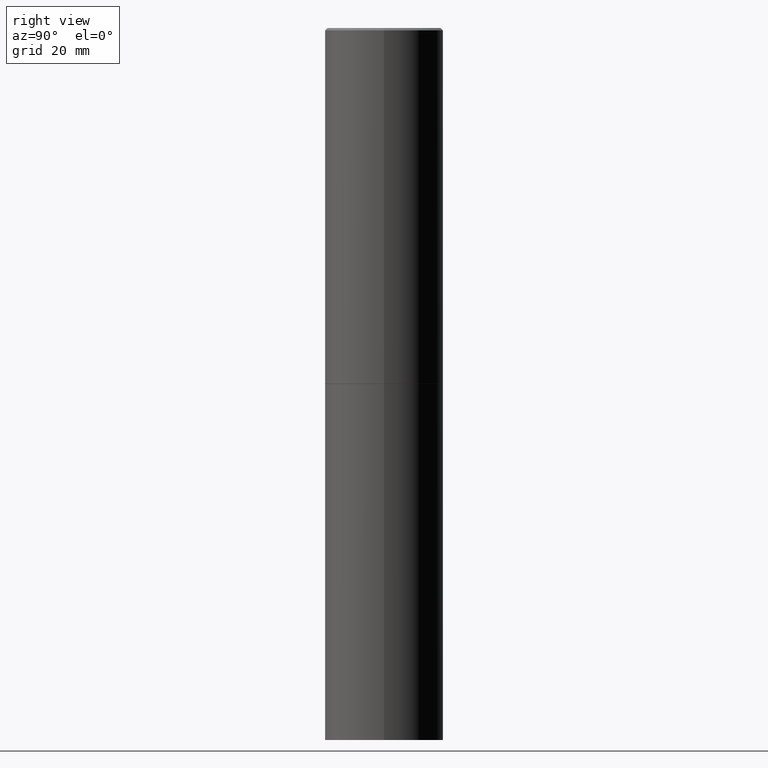
[diagram: clean part render]
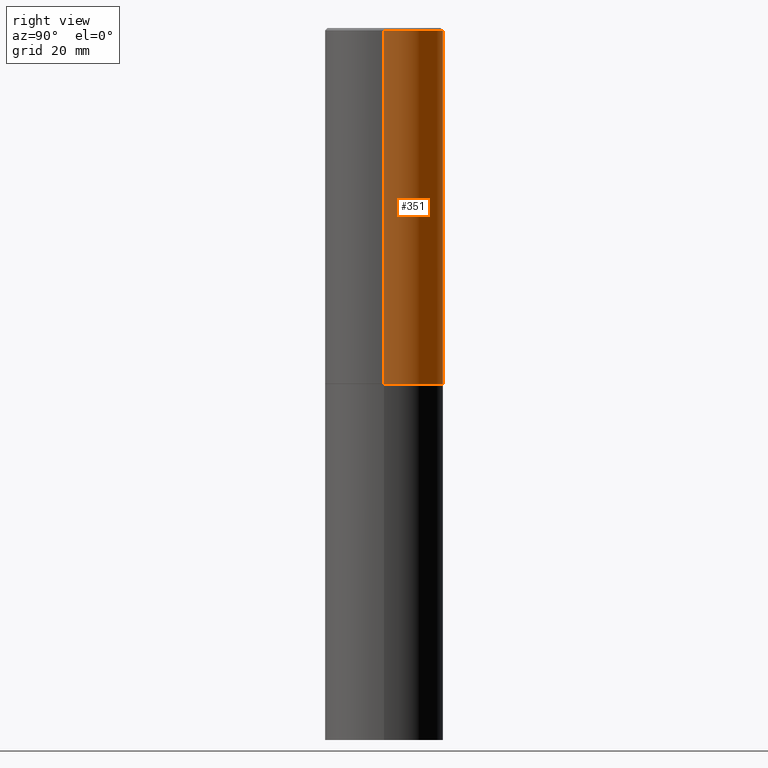
[diagram: same view with one face highlighted and labeled with its STEP entity id]
A machine part, right view. The second image highlights one B-rep face of the part: STEP entity #351.
In plain terms, the highlighted cylindrical surface (partial cylindrical patch) has radius 12.7 mm, axis along (-0, 0, 1).
Its self-contained STEP definition (entity closure, byte-faithful):
#7 = VERTEX_POINT ( 'NONE', #151 ) ;
#24 = CIRCLE ( 'NONE', #271, 0.4999999999999996114 ) ;
#28 = FACE_OUTER_BOUND ( 'NONE', #221, .T. ) ;
#58 = EDGE_CURVE ( 'NONE', #265, #238, #114, .T. ) ;
#64 = ORIENTED_EDGE ( 'NONE', *, *, #127, .T. ) ;
#73 = DIRECTION ( 'NONE',  ( 1.000000000000000000, -6.982962677686266711E-15, 4.876176775795935793E-29 ) ) ;
#90 = EDGE_CURVE ( 'NONE', #320, #7, #24, .T. ) ;
#91 = DIRECTION ( 'NONE',  ( 1.000000000000000000, -6.982962677686266711E-15, 0.000000000000000000 ) ) ;
#102 = DIRECTION ( 'NONE',  ( -2.445468806185136597E-29, 3.491481338843145583E-15, 1.000000000000000000 ) ) ;
#107 = CARTESIAN_POINT ( 'NONE',  ( 0.5000000000000000000, -1.396243387403372828E-14, -2.999000000000000554 ) ) ;
#114 = CIRCLE ( 'NONE', #179, 0.5000000000000000000 ) ;
#115 = CARTESIAN_POINT ( 'NONE',  ( -0.4999999999999997780, 3.552713678800499352E-15, -2.459467545127452050E-29 ) ) ;
#121 = CYLINDRICAL_SURFACE ( 'NONE', #359, 0.4999999999999997780 ) ;
#125 = ORIENTED_EDGE ( 'NONE', *, *, #90, .F. ) ;
#127 = EDGE_CURVE ( 'NONE', #238, #7, #292, .T. ) ;
#142 = ORIENTED_EDGE ( 'NONE', *, *, #58, .T. ) ;
#147 = CARTESIAN_POINT ( 'NONE',  ( 0.4999999999999996114, -3.500078625662626318E-15, -0.02000000000000010797 ) ) ;
#151 = CARTESIAN_POINT ( 'NONE',  ( -0.4999999999999996114, 3.421651712066267296E-15, -0.02000000000000010797 ) ) ;
#165 = LINE ( 'NONE', #337, #365 ) ;
#168 = DIRECTION ( 'NONE',  ( -2.445468806185136597E-29, 3.491481338843145583E-15, 1.000000000000000000 ) ) ;
#179 = AXIS2_PLACEMENT_3D ( 'NONE', #229, #182, #209 ) ;
#182 = DIRECTION ( 'NONE',  ( -2.445468806185136597E-29, 3.491481338843145583E-15, 1.000000000000000000 ) ) ;
#209 = DIRECTION ( 'NONE',  ( 1.000000000000000000, -6.982962677686266711E-15, 0.000000000000000000 ) ) ;
#211 = EDGE_CURVE ( 'NONE', #265, #320, #165, .T. ) ;
#221 = EDGE_LOOP ( 'NONE', ( #142, #64, #125, #323 ) ) ;
#229 = CARTESIAN_POINT ( 'NONE',  ( 7.333960949749226429E-29, -1.047095253519059492E-14, -2.999000000000000554 ) ) ;
#238 = VERTEX_POINT ( 'NONE', #321 ) ;
#244 = DIRECTION ( 'NONE',  ( -2.445468806185136877E-29, 3.491481338843145188E-15, 1.000000000000000000 ) ) ;
#261 = VECTOR ( 'NONE', #244, 39.37007874015748143 ) ;
#265 = VERTEX_POINT ( 'NONE', #107 ) ;
#271 = AXIS2_PLACEMENT_3D ( 'NONE', #298, #168, #91 ) ;
#274 = CARTESIAN_POINT ( 'NONE',  ( 0.000000000000000000, 0.000000000000000000, 0.000000000000000000 ) ) ;
#280 = DIRECTION ( 'NONE',  ( -2.445468806185136877E-29, 3.491481338843145188E-15, 1.000000000000000000 ) ) ;
#292 = LINE ( 'NONE', #115, #261 ) ;
#298 = CARTESIAN_POINT ( 'NONE',  ( 4.890937612370299433E-31, -6.982962677686328587E-17, -0.02000000000000010797 ) ) ;
#320 = VERTEX_POINT ( 'NONE', #147 ) ;
#321 = CARTESIAN_POINT ( 'NONE',  ( -0.5000000000000000000, -1.717677402183225026E-15, -2.999000000000000554 ) ) ;
#323 = ORIENTED_EDGE ( 'NONE', *, *, #211, .F. ) ;
#337 = CARTESIAN_POINT ( 'NONE',  ( 0.4999999999999997780, -3.491481338843131778E-15, 2.438088387897966775E-29 ) ) ;
#351 = ADVANCED_FACE ( 'NONE', ( #28 ), #121, .T. ) ;
#359 = AXIS2_PLACEMENT_3D ( 'NONE', #274, #102, #73 ) ;
#365 = VECTOR ( 'NONE', #280, 39.37007874015748143 ) ;